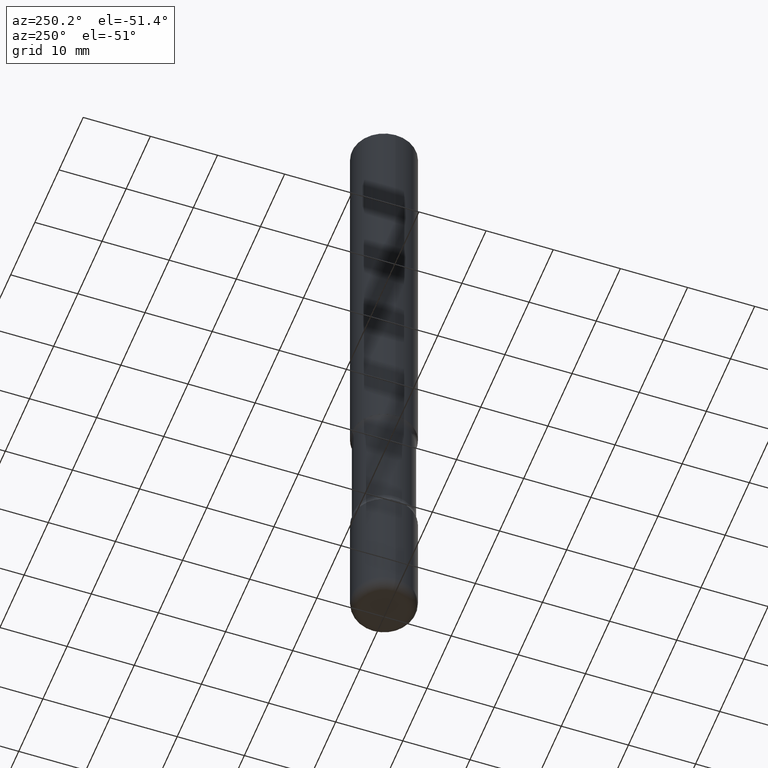
[diagram: clean part render]
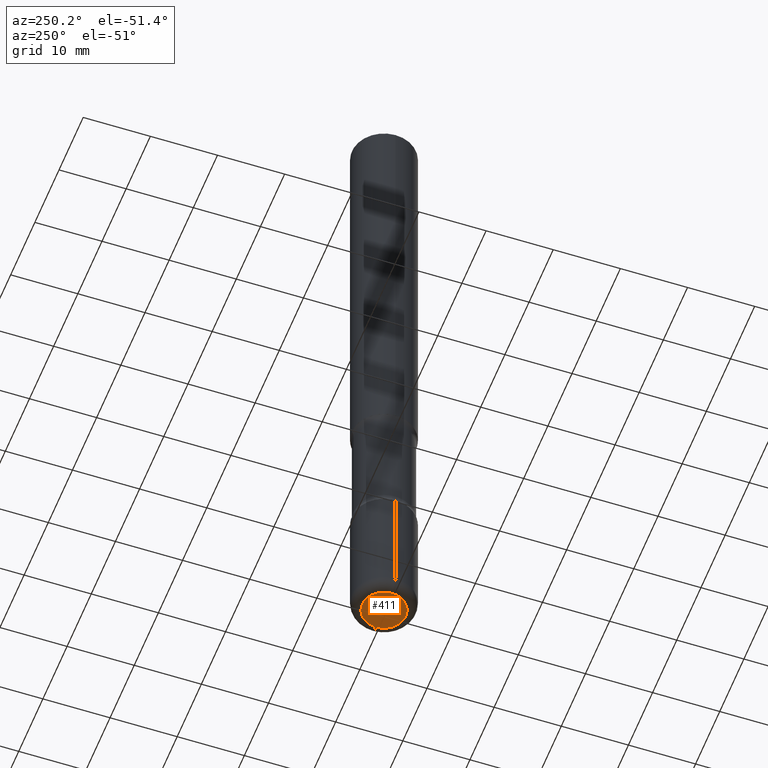
[diagram: same view with one face highlighted and labeled with its STEP entity id]
A machine part, auxiliary view. The second image highlights one B-rep face of the part: STEP entity #411.
In plain terms, the highlighted planar face has unit normal (0, -0, -1).
Its self-contained STEP definition (entity closure, byte-faithful):
#26 = DIRECTION ( 'NONE',  ( -2.445468806185136597E-29, 3.491481338843145583E-15, 1.000000000000000000 ) ) ;
#42 = EDGE_CURVE ( 'NONE', #260, #89, #150, .T. ) ;
#47 = DIRECTION ( 'NONE',  ( 2.438088387897960049E-29, -3.491481338843145188E-15, -1.000000000000000000 ) ) ;
#64 = AXIS2_PLACEMENT_3D ( 'NONE', #200, #26, #146 ) ;
#89 = VERTEX_POINT ( 'NONE', #492 ) ;
#136 = CARTESIAN_POINT ( 'NONE',  ( 9.781875224740546387E-29, -1.396592535537258233E-14, -4.000000000000000000 ) ) ;
#138 = DIRECTION ( 'NONE',  ( 1.000000000000000000, -6.982962677686269866E-15, 0.000000000000000000 ) ) ;
#146 = DIRECTION ( 'NONE',  ( 1.000000000000000000, -6.982962677686269866E-15, 0.000000000000000000 ) ) ;
#150 = CIRCLE ( 'NONE', #545, 0.1275000000000001132 ) ;
#173 = ORIENTED_EDGE ( 'NONE', *, *, #42, .F. ) ;
#200 = CARTESIAN_POINT ( 'NONE',  ( 9.781875224740546387E-29, -1.396592535537258233E-14, -4.000000000000000000 ) ) ;
#218 = EDGE_CURVE ( 'NONE', #89, #260, #332, .T. ) ;
#253 = EDGE_LOOP ( 'NONE', ( #173, #363 ) ) ;
#260 = VERTEX_POINT ( 'NONE', #412 ) ;
#267 = AXIS2_PLACEMENT_3D ( 'NONE', #383, #47, #419 ) ;
#295 = PLANE ( 'NONE',  #267 ) ;
#332 = CIRCLE ( 'NONE', #64, 0.1275000000000001132 ) ;
#363 = ORIENTED_EDGE ( 'NONE', *, *, #218, .F. ) ;
#383 = CARTESIAN_POINT ( 'NONE',  ( 9.781875224740546387E-29, -1.396592535537258233E-14, -4.000000000000000000 ) ) ;
#411 = ADVANCED_FACE ( 'NONE', ( #519 ), #295, .T. ) ;
#412 = CARTESIAN_POINT ( 'NONE',  ( 0.1275000000000001132, -1.485625309677758386E-14, -4.000000000000000000 ) ) ;
#419 = DIRECTION ( 'NONE',  ( -1.000000000000000000, 6.982962677686265922E-15, -4.876176775795935793E-29 ) ) ;
#492 = CARTESIAN_POINT ( 'NONE',  ( -0.1275000000000001132, -1.274207610638512978E-14, -4.000000000000000000 ) ) ;
#495 = DIRECTION ( 'NONE',  ( -2.445468806185136597E-29, 3.491481338843145583E-15, 1.000000000000000000 ) ) ;
#519 = FACE_OUTER_BOUND ( 'NONE', #253, .T. ) ;
#545 = AXIS2_PLACEMENT_3D ( 'NONE', #136, #495, #138 ) ;